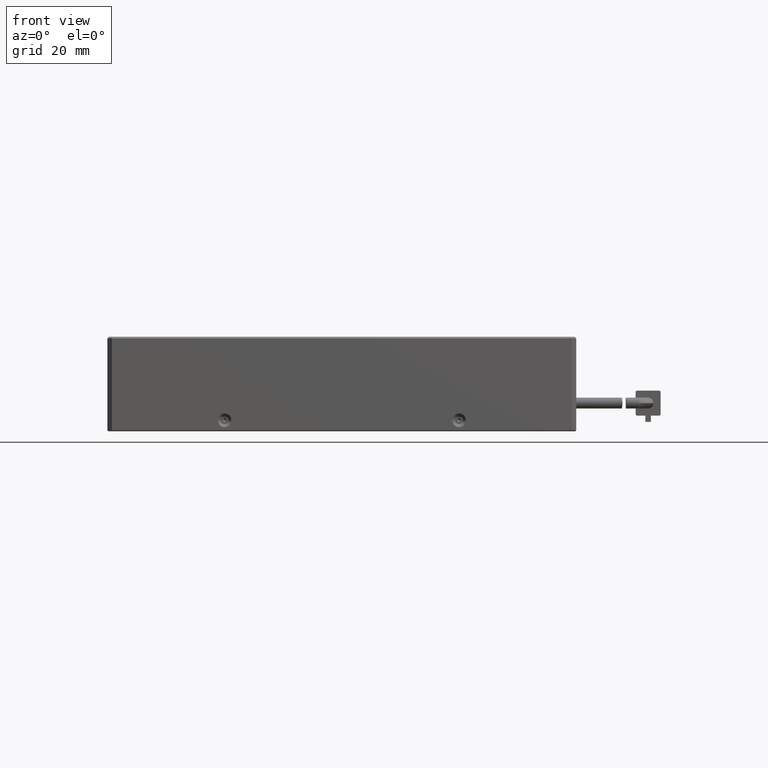
[diagram: clean part render]
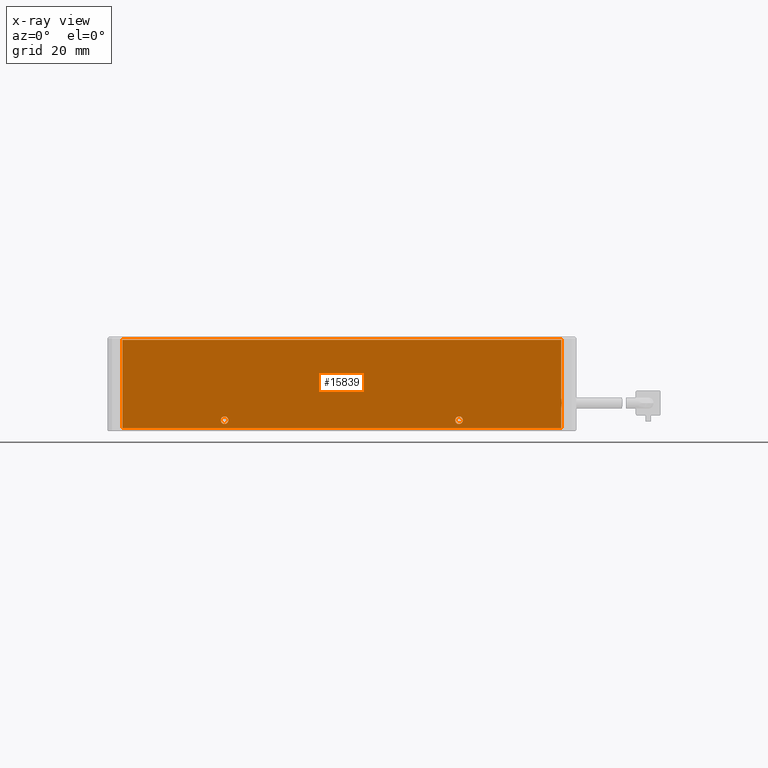
[diagram: x-ray — body ghosted, one internal face saturated and labeled with its STEP entity id]
A machine part, front view, then the same camera in x-ray: the body is ghosted and one INTERNAL B-rep face — a face not visible from any outside direction — is saturated and labeled: STEP entity #15839.
In plain terms, the highlighted planar face has unit normal (-0, 1, 0).
Its self-contained STEP definition (entity closure, byte-faithful):
#298 = CARTESIAN_POINT ( 'NONE',  ( -47.33175061932287500, -62.45061932287365600, -1.499999999999942300 ) ) ;
#535 = LINE ( 'NONE', #4464, #8883 ) ;
#637 = ORIENTED_EDGE ( 'NONE', *, *, #18109, .T. ) ;
#1080 = AXIS2_PLACEMENT_3D ( 'NONE', #8588, #19643, #10202 ) ;
#1845 = CARTESIAN_POINT ( 'NONE',  ( -47.33175061932287500, -62.45061932287365600, -2.699999999999934900 ) ) ;
#1897 = DIRECTION ( 'NONE',  ( 0.0000000000000000000, 0.0000000000000000000, 1.000000000000000000 ) ) ;
#2297 = VECTOR ( 'NONE', #17812, 1000.000000000000000 ) ;
#2389 = DIRECTION ( 'NONE',  ( 0.0000000000000000000, 0.0000000000000000000, 1.000000000000000000 ) ) ;
#2456 = DIRECTION ( 'NONE',  ( 1.665334536937734600E-016, -1.000000000000000000, 0.0000000000000000000 ) ) ;
#2580 = CARTESIAN_POINT ( 'NONE',  ( 27.66824938067712800, -62.45061932287364200, -1.499999999999942300 ) ) ;
#2630 = CIRCLE ( 'NONE', #6899, 1.199999999999992600 ) ;
#2766 = VERTEX_POINT ( 'NONE', #20447 ) ;
#2794 = CARTESIAN_POINT ( 'NONE',  ( 60.36824938067709900, -62.45061932287364200, 24.20000000000006300 ) ) ;
#2925 = ORIENTED_EDGE ( 'NONE', *, *, #7907, .T. ) ;
#3375 = CARTESIAN_POINT ( 'NONE',  ( 60.36824938067709900, -62.45061932287364200, 5.603901493234600300 ) ) ;
#3657 = CARTESIAN_POINT ( 'NONE',  ( 60.52456698745700700, -62.45061932287364900, 3.626371122102704200 ) ) ;
#3848 = CIRCLE ( 'NONE', #16810, 1.199999999999992600 ) ;
#4167 = CARTESIAN_POINT ( 'NONE',  ( -83.03175061932287800, -62.45061932287366300, -3.999999999999937800 ) ) ;
#4280 = ORIENTED_EDGE ( 'NONE', *, *, #15236, .T. ) ;
#4464 = CARTESIAN_POINT ( 'NONE',  ( -80.03175061932286400, -62.45061932287366300, -3.999999999999937800 ) ) ;
#4522 = CARTESIAN_POINT ( 'NONE',  ( -80.03175061932286400, -62.45061932287366300, 24.20000000000006300 ) ) ;
#4676 = ORIENTED_EDGE ( 'NONE', *, *, #7937, .T. ) ;
#5170 = EDGE_CURVE ( 'NONE', #13094, #18079, #9066, .T. ) ;
#5200 = FACE_BOUND ( 'NONE', #14453, .T. ) ;
#5438 = EDGE_CURVE ( 'NONE', #18079, #17011, #6140, .T. ) ;
#5740 = DIRECTION ( 'NONE',  ( 0.0000000000000000000, 0.0000000000000000000, -1.000000000000000000 ) ) ;
#5967 = EDGE_CURVE ( 'NONE', #17570, #10545, #17157, .T. ) ;
#6140 = LINE ( 'NONE', #16378, #10309 ) ;
#6512 = LINE ( 'NONE', #18062, #2297 ) ;
#6594 = EDGE_LOOP ( 'NONE', ( #11657, #20424 ) ) ;
#6899 = AXIS2_PLACEMENT_3D ( 'NONE', #16782, #7364, #18368 ) ;
#7239 = PLANE ( 'NONE',  #9091 ) ;
#7364 = DIRECTION ( 'NONE',  ( 1.665334536937734600E-016, -1.000000000000000000, 0.0000000000000000000 ) ) ;
#7907 = EDGE_CURVE ( 'NONE', #2766, #15714, #6512, .T. ) ;
#7931 = VERTEX_POINT ( 'NONE', #18925 ) ;
#7937 = EDGE_CURVE ( 'NONE', #17011, #7931, #15474, .T. ) ;
#8410 = ORIENTED_EDGE ( 'NONE', *, *, #5170, .T. ) ;
#8588 = CARTESIAN_POINT ( 'NONE',  ( -47.33175061932287500, -62.45061932287365600, -1.499999999999942300 ) ) ;
#8883 = VECTOR ( 'NONE', #13769, 1000.000000000000000 ) ;
#9066 = LINE ( 'NONE', #19754, #12259 ) ;
#9091 = AXIS2_PLACEMENT_3D ( 'NONE', #4167, #15106, #5740 ) ;
#9238 = EDGE_LOOP ( 'NONE', ( #4676, #4280, #2925, #637, #8410, #14995 ) ) ;
#10100 = EDGE_CURVE ( 'NONE', #10719, #19220, #19453, .T. ) ;
#10202 = DIRECTION ( 'NONE',  ( 0.0000000000000000000, 0.0000000000000000000, 1.000000000000000000 ) ) ;
#10309 = VECTOR ( 'NONE', #16406, 1000.000000000000000 ) ;
#10545 = VERTEX_POINT ( 'NONE', #17044 ) ;
#10719 = VERTEX_POINT ( 'NONE', #1845 ) ;
#10772 = ORIENTED_EDGE ( 'NONE', *, *, #11986, .T. ) ;
#11304 = DIRECTION ( 'NONE',  ( 1.665334536937734600E-016, -1.000000000000000000, 0.0000000000000000000 ) ) ;
#11631 = CARTESIAN_POINT ( 'NONE',  ( -80.03175061932286400, -62.45061932287366300, -3.999999999999937800 ) ) ;
#11657 = ORIENTED_EDGE ( 'NONE', *, *, #17498, .T. ) ;
#11845 = CARTESIAN_POINT ( 'NONE',  ( 60.44531854376033700, -62.45061932287365600, 4.815030877585649600 ) ) ;
#11946 = ORIENTED_EDGE ( 'NONE', *, *, #5967, .T. ) ;
#11986 = EDGE_CURVE ( 'NONE', #10545, #17570, #2630, .T. ) ;
#12259 = VECTOR ( 'NONE', #12517, 1000.000000000000000 ) ;
#12517 = DIRECTION ( 'NONE',  ( 1.000000000000000000, 1.665334536937734600E-016, -0.0000000000000000000 ) ) ;
#13001 = FACE_OUTER_BOUND ( 'NONE', #9238, .T. ) ;
#13094 = VERTEX_POINT ( 'NONE', #4522 ) ;
#13486 = FACE_BOUND ( 'NONE', #6594, .T. ) ;
#13544 = VECTOR ( 'NONE', #17242, 1000.000000000000000 ) ;
#13769 = DIRECTION ( 'NONE',  ( -0.0000000000000000000, -0.0000000000000000000, 1.000000000000000000 ) ) ;
#13988 = CARTESIAN_POINT ( 'NONE',  ( 60.36824938067709900, -62.45061932287364200, -3.999999999999937800 ) ) ;
#14453 = EDGE_LOOP ( 'NONE', ( #10772, #11946 ) ) ;
#14602 = CARTESIAN_POINT ( 'NONE',  ( 60.53304868077512400, -62.45061932287363500, 3.683392620540138400 ) ) ;
#14983 = CARTESIAN_POINT ( 'NONE',  ( 60.36824938067709900, -62.45061932287364200, 2.396098506765524500 ) ) ;
#14995 = ORIENTED_EDGE ( 'NONE', *, *, #5438, .T. ) ;
#15001 = CARTESIAN_POINT ( 'NONE',  ( 60.36824938067709200, -62.45061932287364900, 2.634123256679509000 ) ) ;
#15043 = CARTESIAN_POINT ( 'NONE',  ( 60.39553011443953800, -62.45061932287363500, 2.906076824224376900 ) ) ;
#15061 = CARTESIAN_POINT ( 'NONE',  ( 60.45051784342945200, -62.45061932287365600, 3.214348915534327200 ) ) ;
#15106 = DIRECTION ( 'NONE',  ( -1.665334536937734600E-016, 1.000000000000000000, 0.0000000000000000000 ) ) ;
#15236 = EDGE_CURVE ( 'NONE', #7931, #2766, #17814, .T. ) ;
#15254 = CARTESIAN_POINT ( 'NONE',  ( 60.45027968372634300, -62.45061932287365600, 3.213011163501250600 ) ) ;
#15270 = CARTESIAN_POINT ( 'NONE',  ( 60.45049602589297400, -62.45061932287363500, 3.214213694090481500 ) ) ;
#15316 = CARTESIAN_POINT ( 'NONE',  ( 60.45084877954761300, -62.45061932287366300, 3.216168066462450300 ) ) ;
#15355 = CARTESIAN_POINT ( 'NONE',  ( 60.45186955424160400, -62.45061932287362800, 3.221782304080550700 ) ) ;
#15385 = CARTESIAN_POINT ( 'NONE',  ( 60.45470183496201600, -62.45061932287364200, 3.237226920984138900 ) ) ;
#15424 = CARTESIAN_POINT ( 'NONE',  ( 60.46352932173207500, -62.45061932287365600, 3.284980721460833300 ) ) ;
#15474 = B_SPLINE_CURVE_WITH_KNOTS ( 'NONE', 3,
 ( #17246, #17856, #17068, #17002, #16976, #16931, #16905, #16861, #16841, #11845, #16815, #16799, #16750, #16685, #16664, #16618, #16603, #16535, #16462, #16415, #16396, #16358, #16343, #16296, #16279, #16210, #16162, #16146, #16097, #14602, #16020, #15996, #3657, #15906, #15879, #15855, #15834, #15805, #15784, #15704, #15679, #15609, #15576, #15424, #15385, #15355, #15316, #15270, #15254, #15061, #15043, #15001, #14983 ),
 .UNSPECIFIED., .F., .F.,
 ( 4, 1, 1, 1, 1, 1, 1, 2, 2, 1, 1, 2, 2, 1, 1, 1, 2, 2, 2, 1, 1, 1, 1, 2, 2, 1, 1, 1, 1, 2, 2, 1, 1, 1, 1, 2, 2, 4 ),
 ( 0.0000000000000000000, 0.1249999999999482100, 0.1874999999999227000, 0.2187499999999103200, 0.2343749999999036900, 0.2421874999999008600, 0.2460937499998999100, 0.2480468749998989700, 0.2499999999998980300, 0.2812499999999004700, 0.2968749999999020800, 0.3046874999999029100, 0.3124999999999036900, 0.3437499999999101300, 0.3593749999999143500, 0.3671874999999168400, 0.3710937499999186200, 0.3749999999999204000, 0.4999999999999700200, 0.5624999999999948900, 0.5937500000000073300, 0.6093750000000132100, 0.6171875000000161000, 0.6210937500000175400, 0.6250000000000189800, 0.6562500000000289800, 0.6718750000000334200, 0.6796875000000349700, 0.6835937500000360800, 0.6855468750000364200, 0.6875000000000366400, 0.7187500000000430800, 0.7343750000000456300, 0.7421875000000460700, 0.7460937500000476300, 0.7480468750000477400, 0.7500000000000479600, 1.000000000000000000 ),
 .UNSPECIFIED. ) ;
#15576 = CARTESIAN_POINT ( 'NONE',  ( 60.47651789667109100, -62.45061932287365600, 3.354823236160033000 ) ) ;
#15609 = CARTESIAN_POINT ( 'NONE',  ( 60.48827860061475500, -62.45061932287367100, 3.417947285661581800 ) ) ;
#15679 = CARTESIAN_POINT ( 'NONE',  ( 60.48854106562305300, -62.45061932287365600, 3.419359977497237400 ) ) ;
#15704 = CARTESIAN_POINT ( 'NONE',  ( 60.48948507796243500, -62.45061932287364900, 3.424442621102659100 ) ) ;
#15714 = VERTEX_POINT ( 'NONE', #11631 ) ;
#15784 = CARTESIAN_POINT ( 'NONE',  ( 60.49089083768814800, -62.45061932287364200, 3.432023358898111700 ) ) ;
#15805 = CARTESIAN_POINT ( 'NONE',  ( 60.49409913223168200, -62.45061932287364900, 3.449409153798755700 ) ) ;
#15834 = CARTESIAN_POINT ( 'NONE',  ( 60.50022847538574700, -62.45061932287364900, 3.482970370445044300 ) ) ;
#15839 = ADVANCED_FACE ( 'NONE', ( #13001, #5200, #13486 ), #7239, .T. ) ;
#15855 = CARTESIAN_POINT ( 'NONE',  ( 60.51133817796264200, -62.45061932287365600, 3.545251311117645400 ) ) ;
#15879 = CARTESIAN_POINT ( 'NONE',  ( 60.51889109377467000, -62.45061932287363500, 3.590335272917047200 ) ) ;
#15906 = CARTESIAN_POINT ( 'NONE',  ( 60.52357093743538700, -62.45061932287364200, 3.619998393449472800 ) ) ;
#15996 = CARTESIAN_POINT ( 'NONE',  ( 60.52604539750033300, -62.45061932287365600, 3.635979123210565600 ) ) ;
#16020 = CARTESIAN_POINT ( 'NONE',  ( 60.52822538995803800, -62.45061932287363500, 3.650330495045608400 ) ) ;
#16097 = CARTESIAN_POINT ( 'NONE',  ( 60.54164182940568400, -62.45061932287363500, 3.747819236380227600 ) ) ;
#16146 = CARTESIAN_POINT ( 'NONE',  ( 60.55461439465225500, -62.45061932287363500, 3.869881927464540200 ) ) ;
#16162 = CARTESIAN_POINT ( 'NONE',  ( 60.55851019569581700, -62.45061932287364200, 3.962866164515316900 ) ) ;
#16210 = CARTESIAN_POINT ( 'NONE',  ( 60.55667041032120300, -62.45061932287364200, 4.133313402969171200 ) ) ;
#16279 = CARTESIAN_POINT ( 'NONE',  ( 60.54347502129817100, -62.45061932287363500, 4.264948001401227100 ) ) ;
#16296 = CARTESIAN_POINT ( 'NONE',  ( 60.51750155513310900, -62.45061932287364900, 4.421376857794746800 ) ) ;
#16343 = CARTESIAN_POINT ( 'NONE',  ( 60.51726218647050400, -62.45061932287367100, 4.422795761304533900 ) ) ;
#16358 = CARTESIAN_POINT ( 'NONE',  ( 60.51619153663971000, -62.45061932287363500, 4.429152988799356400 ) ) ;
#16378 = CARTESIAN_POINT ( 'NONE',  ( 60.36824938067709900, -62.45061932287364200, -3.999999999999937800 ) ) ;
#16396 = CARTESIAN_POINT ( 'NONE',  ( 60.51454135545763100, -62.45061932287364200, 4.438886885651062800 ) ) ;
#16406 = DIRECTION ( 'NONE',  ( 0.0000000000000000000, 0.0000000000000000000, -1.000000000000000000 ) ) ;
#16415 = CARTESIAN_POINT ( 'NONE',  ( 60.51038148764821800, -62.45061932287363500, 4.462985700904714500 ) ) ;
#16462 = CARTESIAN_POINT ( 'NONE',  ( 60.50082397182438100, -62.45061932287362800, 4.516728888477319800 ) ) ;
#16535 = CARTESIAN_POINT ( 'NONE',  ( 60.49050990648117200, -62.45061932287364900, 4.572301147080084500 ) ) ;
#16603 = CARTESIAN_POINT ( 'NONE',  ( 60.48073601373804600, -62.45061932287362800, 4.623892845501726100 ) ) ;
#16618 = CARTESIAN_POINT ( 'NONE',  ( 60.47825534440185900, -62.45061932287363500, 4.637007149583623400 ) ) ;
#16664 = CARTESIAN_POINT ( 'NONE',  ( 60.47409760950560600, -62.45061932287364900, 4.659033995941642900 ) ) ;
#16685 = CARTESIAN_POINT ( 'NONE',  ( 60.46813872014978800, -62.45061932287364200, 4.690668468070466400 ) ) ;
#16750 = CARTESIAN_POINT ( 'NONE',  ( 60.45617863590592800, -62.45061932287364200, 4.754641654513605400 ) ) ;
#16782 = CARTESIAN_POINT ( 'NONE',  ( 27.66824938067712800, -62.45061932287364200, -1.499999999999942300 ) ) ;
#16799 = CARTESIAN_POINT ( 'NONE',  ( 60.44925969098796500, -62.45061932287363500, 4.792606245423527000 ) ) ;
#16810 = AXIS2_PLACEMENT_3D ( 'NONE', #298, #11304, #1897 ) ;
#16815 = CARTESIAN_POINT ( 'NONE',  ( 60.44593247860621700, -62.45061932287365600, 4.811531645338221500 ) ) ;
#16841 = CARTESIAN_POINT ( 'NONE',  ( 60.44451364388477500, -62.45061932287365600, 4.819637724339215400 ) ) ;
#16861 = CARTESIAN_POINT ( 'NONE',  ( 60.44331104741719000, -62.45061932287363500, 4.826542350157194700 ) ) ;
#16905 = CARTESIAN_POINT ( 'NONE',  ( 60.44053826241285800, -62.45061932287365600, 4.842613633545854900 ) ) ;
#16931 = CARTESIAN_POINT ( 'NONE',  ( 60.43512578608442700, -62.45061932287363500, 4.874598159576692100 ) ) ;
#16976 = CARTESIAN_POINT ( 'NONE',  ( 60.42483320814832100, -62.45061932287363500, 4.937935048652478000 ) ) ;
#17002 = CARTESIAN_POINT ( 'NONE',  ( 60.40637755115948000, -62.45061932287363500, 5.062080174860434500 ) ) ;
#17011 = VERTEX_POINT ( 'NONE', #3375 ) ;
#17044 = CARTESIAN_POINT ( 'NONE',  ( 27.66824938067712800, -62.45061932287364200, -0.2999999999999496400 ) ) ;
#17068 = CARTESIAN_POINT ( 'NONE',  ( 60.37798423271517100, -62.45061932287364900, 5.300255819501904500 ) ) ;
#17157 = CIRCLE ( 'NONE', #18167, 1.199999999999992600 ) ;
#17242 = DIRECTION ( 'NONE',  ( 0.0000000000000000000, 0.0000000000000000000, -1.000000000000000000 ) ) ;
#17246 = CARTESIAN_POINT ( 'NONE',  ( 60.36824938067709900, -62.45061932287364200, 5.603901493234600300 ) ) ;
#17498 = EDGE_CURVE ( 'NONE', #19220, #10719, #3848, .T. ) ;
#17570 = VERTEX_POINT ( 'NONE', #19459 ) ;
#17812 = DIRECTION ( 'NONE',  ( -1.000000000000000000, -1.665334536937734600E-016, -0.0000000000000000000 ) ) ;
#17814 = LINE ( 'NONE', #13988, #13544 ) ;
#17856 = CARTESIAN_POINT ( 'NONE',  ( 60.36824938067709900, -62.45061932287364900, 5.487067044438409100 ) ) ;
#18062 = CARTESIAN_POINT ( 'NONE',  ( 65.16824938067713900, -62.45061932287364200, -3.999999999999937800 ) ) ;
#18079 = VERTEX_POINT ( 'NONE', #2794 ) ;
#18109 = EDGE_CURVE ( 'NONE', #15714, #13094, #535, .T. ) ;
#18167 = AXIS2_PLACEMENT_3D ( 'NONE', #2580, #2456, #2389 ) ;
#18368 = DIRECTION ( 'NONE',  ( 0.0000000000000000000, 0.0000000000000000000, 1.000000000000000000 ) ) ;
#18599 = CARTESIAN_POINT ( 'NONE',  ( -47.33175061932287500, -62.45061932287365600, -0.2999999999999496400 ) ) ;
#18925 = CARTESIAN_POINT ( 'NONE',  ( 60.36824938067709900, -62.45061932287364200, 2.396098506765524500 ) ) ;
#19220 = VERTEX_POINT ( 'NONE', #18599 ) ;
#19453 = CIRCLE ( 'NONE', #1080, 1.199999999999992600 ) ;
#19459 = CARTESIAN_POINT ( 'NONE',  ( 27.66824938067712800, -62.45061932287364200, -2.699999999999934900 ) ) ;
#19643 = DIRECTION ( 'NONE',  ( 1.665334536937734600E-016, -1.000000000000000000, 0.0000000000000000000 ) ) ;
#19754 = CARTESIAN_POINT ( 'NONE',  ( -83.03175061932287800, -62.45061932287366300, 24.20000000000006300 ) ) ;
#20424 = ORIENTED_EDGE ( 'NONE', *, *, #10100, .T. ) ;
#20447 = CARTESIAN_POINT ( 'NONE',  ( 60.36824938067709900, -62.45061932287364200, -3.999999999999937800 ) ) ;